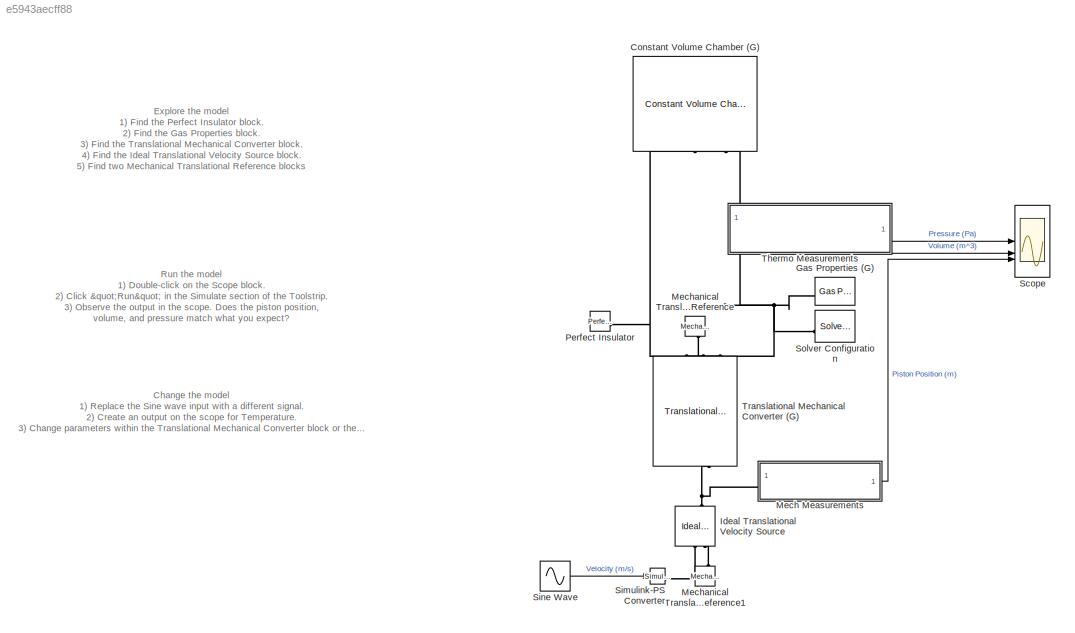
MODEL slx_e5943aecff88
KIND model
CONFIG AbsTol = auto
CONFIG EnableMultiTasking = off
CONFIG FixedStep = auto
CONFIG MaxStep = auto
CONFIG MinStep = auto
CONFIG RelTol = 1e-3
CONFIG SampleTimeConstraint = Unconstrained
CONFIG SolverName = VariableStepAuto
CONFIG StartTime = 0.0
CONFIG StopTime = 10.0
BLOCK [Reference] Constant Volume Chamber (G)  REF=fl_lib/Gas/Elements/Constant Volume
Chamber (G)
  NameLocation = left
  SourceBlock = fl_lib/Gas/Elements/Constant Volume\nChamber (G)
  SourceType = Constant Volume\nChamber (G)
BLOCK [Reference] Gas Properties (G)  REF=fl_lib/Gas/Utilities/Gas Properties (G)
  NameLocation = right
  SourceBlock = fl_lib/Gas/Utilities/Gas Properties (G)
  SourceType = Gas Properties (G)
BLOCK [Reference] Ideal Translational Velocity Source  REF=fl_lib/Mechanical/Mechanical Sources/Ideal Translational
Velocity Source
  NameLocation = right
  SourceBlock = fl_lib/Mechanical/Mechanical Sources/Ideal Translational\nVelocity Source
  SourceType = Ideal Translational\nVelocity Source
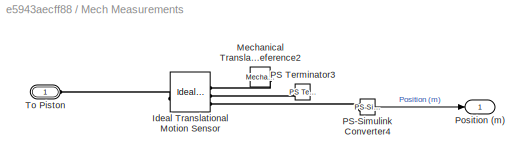
BLOCK [SubSystem] Mech Measurements
BLOCK [Reference] Mech Measurements/Ideal Translational Motion Sensor  REF=fl_lib/Mechanical/Mechanical Sensors/Ideal Translational
Motion Sensor
  SourceBlock = fl_lib/Mechanical/Mechanical Sensors/Ideal Translational\nMotion Sensor
  SourceType = Ideal Translational\nMotion Sensor
BLOCK [Reference] Mech Measurements/Mechanical Translational Reference2  REF=fl_lib/Mechanical/Translational
Elements/Mechanical
Translational
Reference
  NameLocation = top
  SourceBlock = fl_lib/Mechanical/Translational\nElements/Mechanical\nTranslational\nReference
  SourceType = Mechanical\nTranslational\nReference
BLOCK [Reference] Mech Measurements/PS Terminator3  REF=fl_lib/Physical Signals/Sinks/PS Terminator
  SourceBlock = fl_lib/Physical Signals/Sinks/PS Terminator
  SourceType = PS Terminator
BLOCK [Reference] Mech Measurements/PS-Simulink Converter4  REF=nesl_utility/PS-Simulink
Converter
  SourceBlock = nesl_utility/PS-Simulink\nConverter
  SourceType = PS-Simulink\nConverter
BLOCK [Outport] Mech Measurements/Position (m)
BLOCK [PMIOPort] Mech Measurements/To Piston 
  Side = Left
BLOCK [Reference] Mechanical Translational Reference  REF=fl_lib/Mechanical/Translational
Elements/Mechanical
Translational
Reference
  NameLocation = left
  SourceBlock = fl_lib/Mechanical/Translational\nElements/Mechanical\nTranslational\nReference
  SourceType = Mechanical\nTranslational\nReference
BLOCK [Reference] Mechanical Translational Reference1  REF=fl_lib/Mechanical/Translational
Elements/Mechanical
Translational
Reference
  NameLocation = right
  SourceBlock = fl_lib/Mechanical/Translational\nElements/Mechanical\nTranslational\nReference
  SourceType = Mechanical\nTranslational\nReference
BLOCK [Reference] Perfect Insulator  REF=fl_lib/Thermal/Thermal Elements/Perfect Insulator
  SourceBlock = fl_lib/Thermal/Thermal Elements/Perfect Insulator
  SourceType = Perfect Insulator
BLOCK [Scope] Scope
  Floating = off
  NumInputPorts = 3
  ScopeSpecificationString = Simulink.scopes.TimeScopeBlockCfg('CurrentConfiguration', extmgr.ConfigurationSet(extmgr.Configuration('Core','General UI',true),extmgr.Configuration('Core','Source UI',true),extmgr.Configuration('Sources','WiredSimulink',true,'DataLoggingVariableName','ScopeData3'),extmgr.Configuration('Visuals','Time Domain',true,'SerializedDisplays',{struct('MinYLimReal','6650.83614','MaxYLimReal','111844.35154...<+2953ch>
BLOCK [Reference] Simulink-PS Converter  REF=nesl_utility/Simulink-PS
Converter
  SourceBlock = nesl_utility/Simulink-PS\nConverter
  SourceType = Simulink-PS\nConverter
BLOCK [Sin] Sine Wave
  Frequency = pi/2
  SampleTime = 0
BLOCK [Reference] Solver Configuration  REF=nesl_utility/Solver
Configuration
  NameLocation = right
  SourceBlock = nesl_utility/Solver\nConfiguration
  SourceType = Solver\nConfiguration
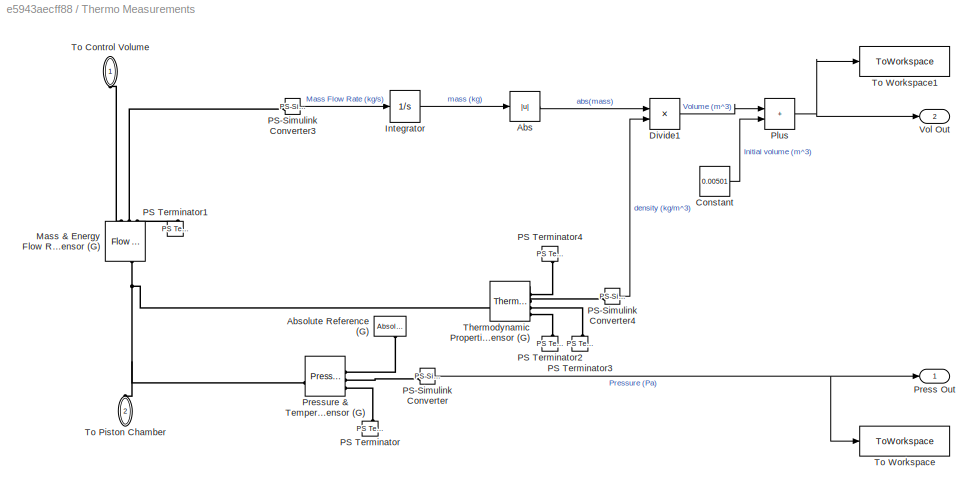
BLOCK [SubSystem] Thermo Measurements
BLOCK [Abs] Thermo Measurements/Abs
  SaturateOnIntegerOverflow = off
BLOCK [Reference] Thermo Measurements/Absolute Reference (G)  REF=fl_lib/Gas/Elements/Absolute Reference
(G)
  NameLocation = left
  SourceBlock = fl_lib/Gas/Elements/Absolute Reference\n(G)
  SourceType = Absolute Reference\n(G)
BLOCK [Constant] Thermo Measurements/Constant
  Value = 0.00501
BLOCK [Product] Thermo Measurements/Divide1
  Inputs = */
BLOCK [Integrator] Thermo Measurements/Integrator
BLOCK [Reference] Thermo Measurements/Mass & Energy Flow Rate Sensor (G)  REF=fl_lib/Gas/Sensors/Flow Rate Sensor (G)
  NameLocation = right
  SourceBlock = fl_lib/Gas/Sensors/Flow Rate Sensor (G)
  SourceType = Flow Rate Sensor (G)
BLOCK [Reference] Thermo Measurements/PS Terminator  REF=fl_lib/Physical Signals/Sinks/PS Terminator
  NameLocation = left
  SourceBlock = fl_lib/Physical Signals/Sinks/PS Terminator
  SourceType = PS Terminator
BLOCK [Reference] Thermo Measurements/PS Terminator1  REF=fl_lib/Physical Signals/Sinks/PS Terminator
  NameLocation = left
  SourceBlock = fl_lib/Physical Signals/Sinks/PS Terminator
  SourceType = PS Terminator
BLOCK [Reference] Thermo Measurements/PS Terminator2  REF=fl_lib/Physical Signals/Sinks/PS Terminator
  NameLocation = left
  SourceBlock = fl_lib/Physical Signals/Sinks/PS Terminator
  SourceType = PS Terminator
BLOCK [Reference] Thermo Measurements/PS Terminator3  REF=fl_lib/Physical Signals/Sinks/PS Terminator
  NameLocation = left
  SourceBlock = fl_lib/Physical Signals/Sinks/PS Terminator
  SourceType = PS Terminator
BLOCK [Reference] Thermo Measurements/PS Terminator4  REF=fl_lib/Physical Signals/Sinks/PS Terminator
  NameLocation = right
  SourceBlock = fl_lib/Physical Signals/Sinks/PS Terminator
  SourceType = PS Terminator
BLOCK [Reference] Thermo Measurements/PS-Simulink Converter  REF=nesl_utility/PS-Simulink
Converter
  SourceBlock = nesl_utility/PS-Simulink\nConverter
  SourceType = PS-Simulink\nConverter
BLOCK [Reference] Thermo Measurements/PS-Simulink Converter3  REF=nesl_utility/PS-Simulink
Converter
  SourceBlock = nesl_utility/PS-Simulink\nConverter
  SourceType = PS-Simulink\nConverter
BLOCK [Reference] Thermo Measurements/PS-Simulink Converter4  REF=nesl_utility/PS-Simulink
Converter
  SourceBlock = nesl_utility/PS-Simulink\nConverter
  SourceType = PS-Simulink\nConverter
BLOCK [Sum] Thermo Measurements/Plus
  IconShape = rectangular
BLOCK [Outport] Thermo Measurements/Press Out
BLOCK [Reference] Thermo Measurements/Pressure & Temperature Sensor (G)  REF=fl_lib/Gas/Sensors/Pressure &
Temperature Sensor
(G)
  SourceBlock = fl_lib/Gas/Sensors/Pressure &\nTemperature Sensor\n(G)
  SourceType = Pressure &\nTemperature Sensor\n(G)
BLOCK [Reference] Thermo Measurements/Thermodynamic Properties Sensor (G)  REF=fl_lib/Gas/Sensors/Thermodynamic
Properties Sensor
(G)
  SourceBlock = fl_lib/Gas/Sensors/Thermodynamic\nProperties Sensor\n(G)
  SourceType = Thermodynamic\nProperties Sensor\n(G)
BLOCK [PMIOPort] Thermo Measurements/To Control Volume
  NameLocation = right
  Side = Left
BLOCK [PMIOPort] Thermo Measurements/To Piston Chamber
  NameLocation = right
  Port = 2
  Side = Left
BLOCK [ToWorkspace] Thermo Measurements/To Workspace
  FixptAsFi = on
  MaxDataPoints = inf
  SampleTime = -1
  SaveFormat = Timeseries
  VariableName = pressure
BLOCK [ToWorkspace] Thermo Measurements/To Workspace1
  FixptAsFi = on
  MaxDataPoints = inf
  SampleTime = -1
  Save2DSignal = 2-D array (concatenate along first dimension)
  SaveFormat = Timeseries
  VariableName = volume
BLOCK [Outport] Thermo Measurements/Vol Out
  Port = 2
BLOCK [Reference] Translational Mechanical Converter (G)  REF=fl_lib/Gas/Elements/Translational
Mechanical Converter
(G)
  NameLocation = left
  SourceBlock = fl_lib/Gas/Elements/Translational\nMechanical Converter\n(G)
  SourceType = Translational\nMechanical Converter\n(G)
ANNOTATION (root): Change the model 1) Replace the Sine wave input with a different signal. 2) Create an output on the scope for Temperature. 3) Change parameters within the Translational Mechanical Converter block or the Constant Volume Chamber block. Does it change your simulation results?
ANNOTATION (root): Explore the model 1) Find the Perfect Insulator block. 2) Find the Gas Properties block. 3) Find the Translational Mechanical Converter block. 4) Find the Ideal Translational Velocity Source block. 5) Find two Mechanical Translational Reference blocks 6) Find the Constant Volume Chamber block. 7) Find the Scope block.
ANNOTATION (root): Run the model 1) Double-click on the Scope block. 2) Click "Run" in the Simulate section of the Toolstrip. 3) Observe the output in the scope. Does the piston position, volume, and pressure match what you expect?
LINE Mech Measurements/PS-Simulink Converter4:1 -> Mech Measurements/Position (m):1
LINE Mech Measurements:1 -> Scope:3
LINE Sine Wave:1 -> Simulink-PS Converter:1
LINE Thermo Measurements/Abs:1 -> Thermo Measurements/Divide1:1
LINE Thermo Measurements/Constant:1 -> Thermo Measurements/Plus:2
LINE Thermo Measurements/Divide1:1 -> Thermo Measurements/Plus:1
LINE Thermo Measurements/Integrator:1 -> Thermo Measurements/Abs:1
LINE Thermo Measurements/PS-Simulink Converter3:1 -> Thermo Measurements/Integrator:1
LINE Thermo Measurements/PS-Simulink Converter4:1 -> Thermo Measurements/Divide1:2
NET Thermo Measurements/PS-Simulink Converter:1 -> Thermo Measurements/Press Out:1, Thermo Measurements/To Workspace:1
NET Thermo Measurements/Plus:1 -> Thermo Measurements/To Workspace1:1, Thermo Measurements/Vol Out:1
LINE Thermo Measurements:1 -> Scope:1
LINE Thermo Measurements:2 -> Scope:2
PLINE Constant Volume Chamber (G):LConn1 -- Thermo Measurements:LConn1
PNET net1: Constant Volume Chamber (G):LConn2 -- Perfect Insulator:LConn1 -- Translational Mechanical Converter (G):LConn3
PNET net2: Gas Properties (G):RConn1 -- Solver Configuration:RConn1 -- Thermo Measurements:LConn2 -- Translational Mechanical Converter (G):LConn1
PNET net3: Ideal Translational Velocity Source:LConn1 -- Mech Measurements:LConn1 -- Translational Mechanical Converter (G):RConn1
PLINE Ideal Translational Velocity Source:RConn1 -- Simulink-PS Converter:RConn1
PLINE Ideal Translational Velocity Source:RConn2 -- Mechanical Translational Reference1:LConn1
PLINE Mech Measurements/Ideal Translational Motion Sensor:LConn1 -- Mech Measurements/To Piston :RConn1
PLINE Mech Measurements/Ideal Translational Motion Sensor:RConn1 -- Mech Measurements/Mechanical Translational Reference2:LConn1
PLINE Mech Measurements/Ideal Translational Motion Sensor:RConn2 -- Mech Measurements/PS Terminator3:LConn1
PLINE Mech Measurements/Ideal Translational Motion Sensor:RConn3 -- Mech Measurements/PS-Simulink Converter4:LConn1
PLINE Mechanical Translational Reference:LConn1 -- Translational Mechanical Converter (G):LConn2
PLINE Thermo Measurements/Absolute Reference (G):LConn1 -- Thermo Measurements/Pressure & Temperature Sensor (G):RConn1
PNET net4: Thermo Measurements/Mass & Energy Flow Rate Sensor (G):LConn1 -- Thermo Measurements/Pressure & Temperature Sensor (G):LConn1 -- Thermo Measurements/Thermodynamic Properties Sensor (G):LConn1 -- Thermo Measurements/To Piston Chamber:RConn1
PLINE Thermo Measurements/Mass & Energy Flow Rate Sensor (G):RConn1 -- Thermo Measurements/To Control Volume:RConn1
PLINE Thermo Measurements/Mass & Energy Flow Rate Sensor (G):RConn2 -- Thermo Measurements/PS-Simulink Converter3:LConn1
PLINE Thermo Measurements/Mass & Energy Flow Rate Sensor (G):RConn3 -- Thermo Measurements/PS Terminator1:LConn1
PLINE Thermo Measurements/PS Terminator2:LConn1 -- Thermo Measurements/Thermodynamic Properties Sensor (G):RConn4
PLINE Thermo Measurements/PS Terminator3:LConn1 -- Thermo Measurements/Thermodynamic Properties Sensor (G):RConn3
PLINE Thermo Measurements/PS Terminator4:LConn1 -- Thermo Measurements/Thermodynamic Properties Sensor (G):RConn1
PLINE Thermo Measurements/PS Terminator:LConn1 -- Thermo Measurements/Pressure & Temperature Sensor (G):RConn3
PLINE Thermo Measurements/PS-Simulink Converter4:LConn1 -- Thermo Measurements/Thermodynamic Properties Sensor (G):RConn2
PLINE Thermo Measurements/PS-Simulink Converter:LConn1 -- Thermo Measurements/Pressure & Temperature Sensor (G):RConn2
note: NET lines group one-source signal fan-out (src -> all destinations, sorted); 1:1 wires keep LINE; PNET lines group multi-terminal physical nets as a canonical sorted terminal list (undirected conserving connections); 2-terminal nets keep the pairwise PLINE form
